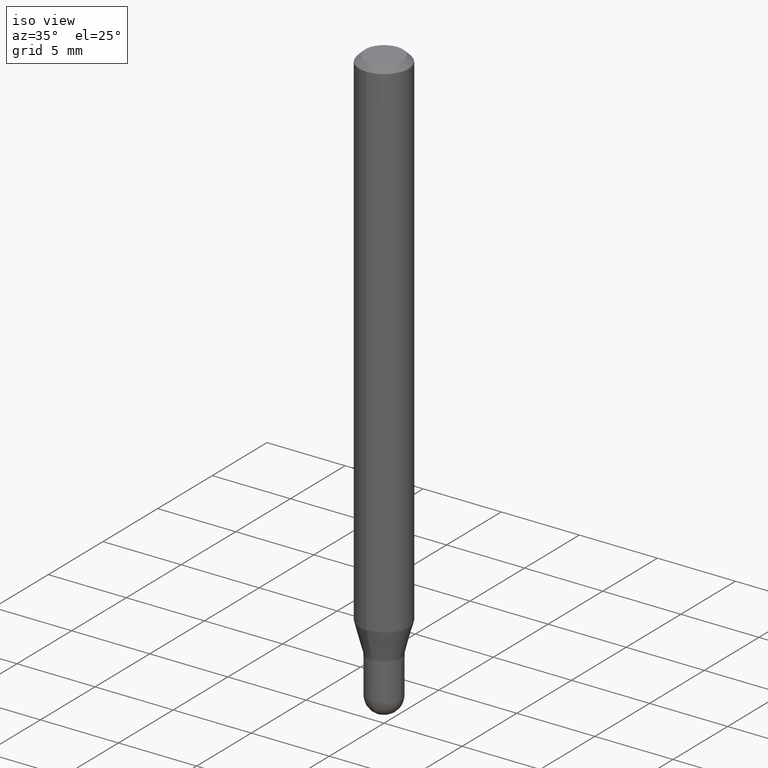
[diagram: clean part render]
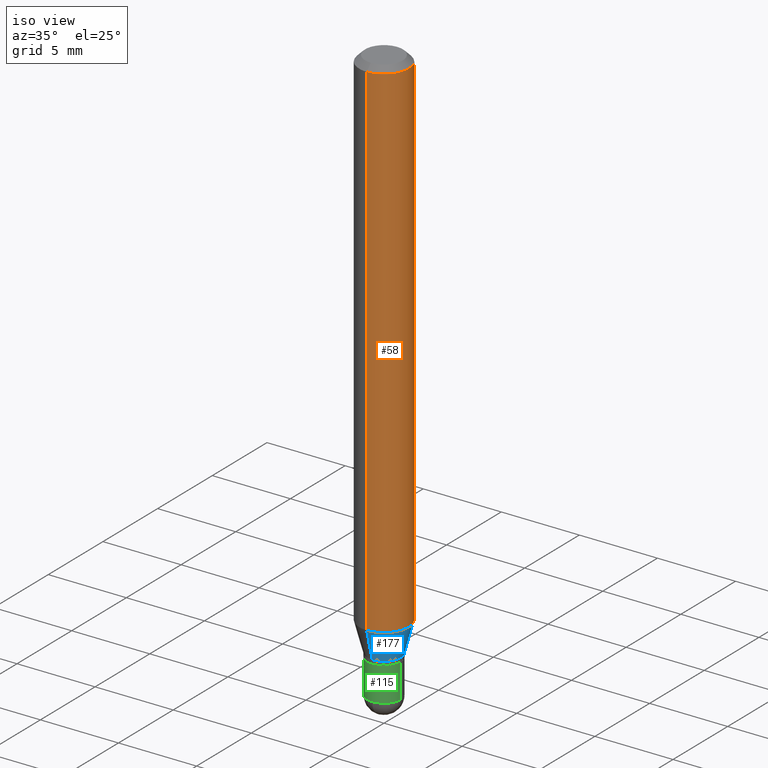
[diagram: same view with three faces highlighted in distinct colors, each labeled with its STEP entity id]
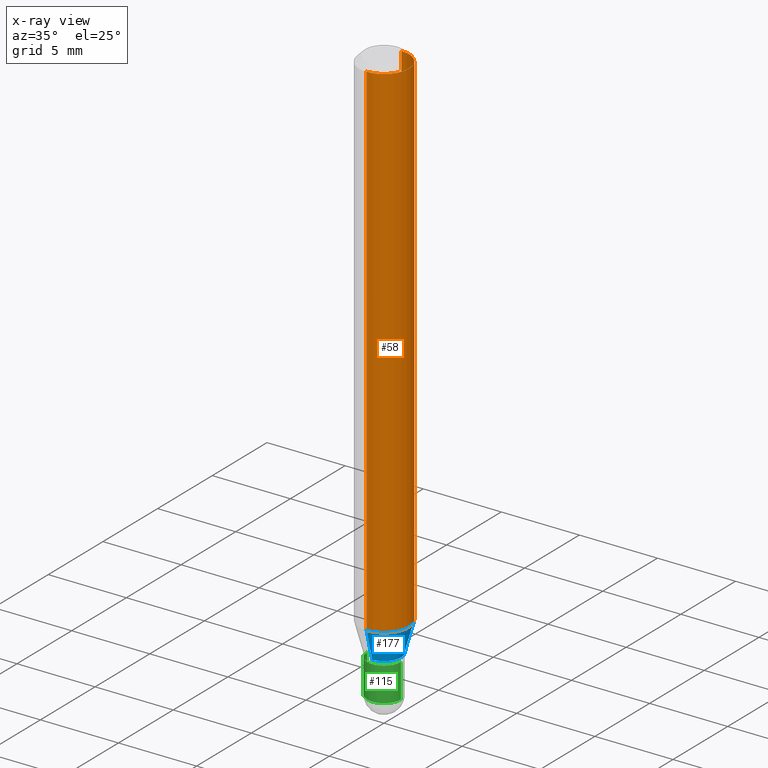
[diagram: x-ray of the same camera — body ghosted, the three highlighted faces saturated]
A machine part, iso view with three faces highlighted in distinct colors.
The next image is the same camera in x-ray (body ghosted, the three faces saturated) — at least one of them is partly hidden behind the body in this view.
Their STEP definitions:

[orange] entity #58 — the highlighted cylindrical surface (edge-blend (fillet) strip) has radius 1.5875 mm, axis along (-0, 0, 1).
#25 = ORIENTED_EDGE ( 'NONE', *, *, #73, .T. ) ;
#44 = ORIENTED_EDGE ( 'NONE', *, *, #279, .F. ) ;
#47 = DIRECTION ( 'NONE',  ( -2.445382581440065838E-29, 3.491604817585695634E-15, 1.000000000000000000 ) ) ;
#58 = ADVANCED_FACE ( 'NONE', ( #337 ), #184, .T. ) ;
#61 = EDGE_CURVE ( 'NONE', #372, #486, #498, .T. ) ;
#64 = EDGE_LOOP ( 'NONE', ( #25, #369, #478, #44 ) ) ;
#72 = CIRCLE ( 'NONE', #473, 0.06250000000000000000 ) ;
#73 = EDGE_CURVE ( 'NONE', #92, #372, #118, .T. ) ;
#92 = VERTEX_POINT ( 'NONE', #98 ) ;
#98 = CARTESIAN_POINT ( 'NONE',  ( -4.364351673553598192E-16, -0.06250000000000445477, -1.287358983848622129 ) ) ;
#118 = CIRCLE ( 'NONE', #234, 0.06250000000000000000 ) ;
#134 = DIRECTION ( 'NONE',  ( -6.982962677686265922E-15, -1.000000000000000000, 3.483106191921935554E-15 ) ) ;
#137 = DIRECTION ( 'NONE',  ( -6.982962677686265922E-15, -1.000000000000000000, 4.370956789862821150E-15 ) ) ;
#143 = DIRECTION ( 'NONE',  ( -6.982962677686265922E-15, -1.000000000000000000, 3.491604817585695240E-15 ) ) ;
#147 = AXIS2_PLACEMENT_3D ( 'NONE', #218, #414, #143 ) ;
#184 = CYLINDRICAL_SURFACE ( 'NONE', #147, 0.06250000000000000000 ) ;
#196 = VECTOR ( 'NONE', #47, 39.37007874015748143 ) ;
#201 = DIRECTION ( 'NONE',  ( -2.445382581440065558E-29, 3.491604817585695240E-15, 1.000000000000000000 ) ) ;
#208 = VERTEX_POINT ( 'NONE', #228 ) ;
#209 = CARTESIAN_POINT ( 'NONE',  ( -4.364351673553916201E-16, -0.06250000000000000000, 2.182253010991059525E-16 ) ) ;
#218 = CARTESIAN_POINT ( 'NONE',  ( 0.000000000000000000, 0.000000000000000000, 0.000000000000000000 ) ) ;
#224 = CARTESIAN_POINT ( 'NONE',  ( 3.148085235163804015E-29, -4.494948829968075208E-15, -1.287358983848622573 ) ) ;
#228 = CARTESIAN_POINT ( 'NONE',  ( -4.364351673553912750E-16, -0.06250000000000005551, -0.01499999999999979128 ) ) ;
#234 = AXIS2_PLACEMENT_3D ( 'NONE', #224, #379, #137 ) ;
#267 = VECTOR ( 'NONE', #494, 39.37007874015748143 ) ;
#279 = EDGE_CURVE ( 'NONE', #92, #208, #359, .T. ) ;
#299 = CARTESIAN_POINT ( 'NONE',  ( 4.440892098500625669E-16, 0.06250000000000000000, -2.182253010991059525E-16 ) ) ;
#331 = EDGE_CURVE ( 'NONE', #208, #486, #72, .T. ) ;
#337 = FACE_OUTER_BOUND ( 'NONE', #64, .T. ) ;
#340 = CARTESIAN_POINT ( 'NONE',  ( 4.440892098500942692E-16, 0.06249999999999995143, -0.01500000000000022669 ) ) ;
#359 = LINE ( 'NONE', #209, #196 ) ;
#369 = ORIENTED_EDGE ( 'NONE', *, *, #61, .T. ) ;
#372 = VERTEX_POINT ( 'NONE', #392 ) ;
#379 = DIRECTION ( 'NONE',  ( -2.445382581440065558E-29, 3.491604817585695240E-15, 1.000000000000000000 ) ) ;
#392 = CARTESIAN_POINT ( 'NONE',  ( 4.440892098500941706E-16, 0.06249999999999553135, -1.287358983848622795 ) ) ;
#414 = DIRECTION ( 'NONE',  ( -2.445382581440065558E-29, 3.491604817585695240E-15, 1.000000000000000000 ) ) ;
#473 = AXIS2_PLACEMENT_3D ( 'NONE', #484, #201, #134 ) ;
#478 = ORIENTED_EDGE ( 'NONE', *, *, #331, .F. ) ;
#484 = CARTESIAN_POINT ( 'NONE',  ( 3.668073872160100859E-31, -5.237407226378546385E-17, -0.01500000000000000812 ) ) ;
#486 = VERTEX_POINT ( 'NONE', #340 ) ;
#494 = DIRECTION ( 'NONE',  ( -2.445382581440065838E-29, 3.491604817585695634E-15, 1.000000000000000000 ) ) ;
#498 = LINE ( 'NONE', #299, #267 ) ;

[blue] entity #177 — the highlighted conical surface has half-angle 15 deg.
#36 = CARTESIAN_POINT ( 'NONE',  ( 3.330611075921369226E-29, -4.755565761551716279E-15, -1.362000000000000099 ) ) ;
#63 = CARTESIAN_POINT ( 'NONE',  ( -2.967759138016324832E-16, -0.04250000000000468681, -1.361999999999999877 ) ) ;
#67 = ORIENTED_EDGE ( 'NONE', *, *, #315, .T. ) ;
#73 = EDGE_CURVE ( 'NONE', #92, #372, #118, .T. ) ;
#92 = VERTEX_POINT ( 'NONE', #98 ) ;
#95 = CIRCLE ( 'NONE', #500, 0.04249999999999993366 ) ;
#98 = CARTESIAN_POINT ( 'NONE',  ( -4.364351673553598192E-16, -0.06250000000000445477, -1.287358983848622129 ) ) ;
#111 = AXIS2_PLACEMENT_3D ( 'NONE', #36, #307, #117 ) ;
#117 = DIRECTION ( 'NONE',  ( -6.982962677686265133E-15, -1.000000000000000000, 6.427877632151217642E-15 ) ) ;
#118 = CIRCLE ( 'NONE', #234, 0.06250000000000000000 ) ;
#122 = VERTEX_POINT ( 'NONE', #191 ) ;
#137 = DIRECTION ( 'NONE',  ( -6.982962677686265922E-15, -1.000000000000000000, 4.370956789862821150E-15 ) ) ;
#154 = EDGE_CURVE ( 'NONE', #122, #393, #95, .T. ) ;
#176 = ORIENTED_EDGE ( 'NONE', *, *, #474, .F. ) ;
#177 = ADVANCED_FACE ( 'NONE', ( #512 ), #347, .T. ) ;
#191 = CARTESIAN_POINT ( 'NONE',  ( -2.967759138016324832E-16, -0.04250000000000468681, -1.361999999999999877 ) ) ;
#206 = ORIENTED_EDGE ( 'NONE', *, *, #154, .T. ) ;
#224 = CARTESIAN_POINT ( 'NONE',  ( 3.148085235163804015E-29, -4.494948829968075208E-15, -1.287358983848622573 ) ) ;
#234 = AXIS2_PLACEMENT_3D ( 'NONE', #224, #379, #137 ) ;
#238 = LINE ( 'NONE', #390, #242 ) ;
#240 = CARTESIAN_POINT ( 'NONE',  ( 3.730349362740847299E-16, 0.04249999999999517358, -1.362000000000000322 ) ) ;
#242 = VECTOR ( 'NONE', #434, 39.37007874015748854 ) ;
#264 = ORIENTED_EDGE ( 'NONE', *, *, #73, .F. ) ;
#307 = DIRECTION ( 'NONE',  ( -2.445382581440065558E-29, 3.491604817585695240E-15, 1.000000000000000000 ) ) ;
#313 = DIRECTION ( 'NONE',  ( -2.445382581440065558E-29, 3.491604817585695240E-15, 1.000000000000000000 ) ) ;
#315 = EDGE_CURVE ( 'NONE', #393, #372, #238, .T. ) ;
#316 = DIRECTION ( 'NONE',  ( -6.982962677686265133E-15, -1.000000000000000000, 6.427877632151217642E-15 ) ) ;
#332 = DIRECTION ( 'NONE',  ( -1.807323732225328562E-15, -0.2588190451025179639, 0.9659258262890690894 ) ) ;
#347 = CONICAL_SURFACE ( 'NONE', #111, 0.04249999999999993366, 0.2617993877991500740 ) ;
#372 = VERTEX_POINT ( 'NONE', #392 ) ;
#379 = DIRECTION ( 'NONE',  ( -2.445382581440065558E-29, 3.491604817585695240E-15, 1.000000000000000000 ) ) ;
#390 = CARTESIAN_POINT ( 'NONE',  ( 3.019806626980753384E-16, 0.04249999999999517358, -1.362000000000000322 ) ) ;
#392 = CARTESIAN_POINT ( 'NONE',  ( 4.440892098500941706E-16, 0.06249999999999553135, -1.287358983848622795 ) ) ;
#393 = VERTEX_POINT ( 'NONE', #240 ) ;
#413 = LINE ( 'NONE', #63, #432 ) ;
#432 = VECTOR ( 'NONE', #332, 39.37007874015748854 ) ;
#434 = DIRECTION ( 'NONE',  ( 1.839019923739598738E-15, 0.2588190451025247363, 0.9659258262890673130 ) ) ;
#474 = EDGE_CURVE ( 'NONE', #122, #92, #413, .T. ) ;
#488 = EDGE_LOOP ( 'NONE', ( #206, #67, #264, #176 ) ) ;
#500 = AXIS2_PLACEMENT_3D ( 'NONE', #504, #313, #316 ) ;
#504 = CARTESIAN_POINT ( 'NONE',  ( 3.330611075921369226E-29, -4.755565761551716279E-15, -1.362000000000000099 ) ) ;
#512 = FACE_OUTER_BOUND ( 'NONE', #488, .T. ) ;

[green] entity #115 — the highlighted cylindrical surface (edge-blend (fillet) strip) has radius 1.0795 mm, axis along (-0, 0, 1).
#19 = ORIENTED_EDGE ( 'NONE', *, *, #387, .F. ) ;
#50 = DIRECTION ( 'NONE',  ( -2.445468806185136597E-29, 3.491481338843145583E-15, 1.000000000000000000 ) ) ;
#53 = ORIENTED_EDGE ( 'NONE', *, *, #244, .F. ) ;
#57 = VERTEX_POINT ( 'NONE', #333 ) ;
#69 = EDGE_CURVE ( 'NONE', #247, #109, #455, .T. ) ;
#71 = CARTESIAN_POINT ( 'NONE',  ( -0.04250000000000000999, -4.637592561430298716E-15, -1.457500000000000240 ) ) ;
#79 = CIRCLE ( 'NONE', #180, 0.04250000000000000999 ) ;
#101 = EDGE_CURVE ( 'NONE', #397, #247, #79, .T. ) ;
#103 = DIRECTION ( 'NONE',  ( -2.445468806185136877E-29, 3.491481338843145188E-15, 1.000000000000000000 ) ) ;
#109 = VERTEX_POINT ( 'NONE', #510 ) ;
#114 = CARTESIAN_POINT ( 'NONE',  ( -0.04250000000000000999, 3.019806626980426500E-16, -2.090547413358335560E-30 ) ) ;
#115 = ADVANCED_FACE ( 'NONE', ( #349 ), #506, .T. ) ;
#145 = CARTESIAN_POINT ( 'NONE',  ( 0.04250000000000000999, -2.967759138016664042E-16, 2.072375129713273202E-30 ) ) ;
#150 = DIRECTION ( 'NONE',  ( 1.000000000000000000, -6.982962677686273810E-15, 0.000000000000000000 ) ) ;
#159 = DIRECTION ( 'NONE',  ( 1.000000000000000000, -6.982962677686276177E-15, 0.000000000000000000 ) ) ;
#180 = AXIS2_PLACEMENT_3D ( 'NONE', #255, #197, #150 ) ;
#188 = CIRCLE ( 'NONE', #502, 0.04250000000000000999 ) ;
#197 = DIRECTION ( 'NONE',  ( -2.445468806185136597E-29, 3.491481338843145583E-15, 1.000000000000000000 ) ) ;
#212 = DIRECTION ( 'NONE',  ( 1.000000000000000000, -6.982962677686273810E-15, 0.000000000000000000 ) ) ;
#220 = VERTEX_POINT ( 'NONE', #71 ) ;
#233 = CARTESIAN_POINT ( 'NONE',  ( 0.000000000000000000, 0.000000000000000000, 0.000000000000000000 ) ) ;
#243 = EDGE_LOOP ( 'NONE', ( #53, #281, #289, #310, #19 ) ) ;
#244 = EDGE_CURVE ( 'NONE', #220, #57, #469, .T. ) ;
#247 = VERTEX_POINT ( 'NONE', #429 ) ;
#255 = CARTESIAN_POINT ( 'NONE',  ( 3.564270785014837509E-29, -5.088834051363884851E-15, -1.457500000000000240 ) ) ;
#271 = DIRECTION ( 'NONE',  ( -2.445468806185136877E-29, 3.491481338843145188E-15, 1.000000000000000000 ) ) ;
#281 = ORIENTED_EDGE ( 'NONE', *, *, #324, .T. ) ;
#282 = DIRECTION ( 'NONE',  ( -2.445468806185136597E-29, 3.491481338843145583E-15, 1.000000000000000000 ) ) ;
#284 = AXIS2_PLACEMENT_3D ( 'NONE', #433, #282, #159 ) ;
#289 = ORIENTED_EDGE ( 'NONE', *, *, #101, .T. ) ;
#310 = ORIENTED_EDGE ( 'NONE', *, *, #69, .T. ) ;
#318 = CARTESIAN_POINT ( 'NONE',  ( 3.564270785014837509E-29, -5.088834051363884851E-15, -1.457500000000000240 ) ) ;
#324 = EDGE_CURVE ( 'NONE', #220, #397, #188, .T. ) ;
#333 = CARTESIAN_POINT ( 'NONE',  ( -0.04249999999999999611, -4.637592561430297927E-15, -1.372000000000000108 ) ) ;
#344 = DIRECTION ( 'NONE',  ( 1.000000000000000000, -6.982962677686266711E-15, 4.876176775795935793E-29 ) ) ;
#349 = FACE_OUTER_BOUND ( 'NONE', #243, .T. ) ;
#387 = EDGE_CURVE ( 'NONE', #57, #109, #441, .T. ) ;
#388 = DIRECTION ( 'NONE',  ( -2.445468806185136597E-29, 3.491481338843145583E-15, 1.000000000000000000 ) ) ;
#397 = VERTEX_POINT ( 'NONE', #442 ) ;
#403 = VECTOR ( 'NONE', #103, 39.37007874015748143 ) ;
#415 = VECTOR ( 'NONE', #271, 39.37007874015748143 ) ;
#429 = CARTESIAN_POINT ( 'NONE',  ( 0.04250000000000000999, -5.236349137930008608E-15, -1.457500000000000240 ) ) ;
#431 = AXIS2_PLACEMENT_3D ( 'NONE', #233, #388, #344 ) ;
#433 = CARTESIAN_POINT ( 'NONE',  ( 3.355183202086007133E-29, -4.790312396892795908E-15, -1.372000000000000108 ) ) ;
#441 = CIRCLE ( 'NONE', #284, 0.04249999999999999611 ) ;
#442 = CARTESIAN_POINT ( 'NONE',  ( -3.019806626980067075E-16, -0.04250000000000507538, -1.457500000000000018 ) ) ;
#455 = LINE ( 'NONE', #145, #403 ) ;
#469 = LINE ( 'NONE', #114, #415 ) ;
#502 = AXIS2_PLACEMENT_3D ( 'NONE', #318, #50, #212 ) ;
#506 = CYLINDRICAL_SURFACE ( 'NONE', #431, 0.04250000000000000999 ) ;
#510 = CARTESIAN_POINT ( 'NONE',  ( 0.04249999999999999611, -5.087088310694462559E-15, -1.372000000000000108 ) ) ;